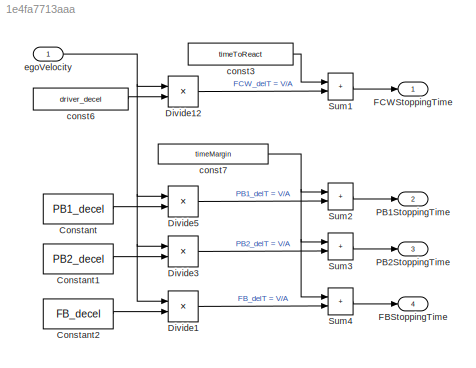
MODEL slx_1e4fa7713aaa
KIND model
CONFIG AbsTol = auto
CONFIG EnableMultiTasking = on
CONFIG FixedStep = auto
CONFIG MaxStep = auto
CONFIG MinStep = auto
CONFIG RelTol = 1e-3
CONFIG SampleTimeConstraint = Unconstrained
CONFIG SolverName = FixedStepDiscrete
CONFIG StartTime = 0.0
CONFIG StopTime = 10.0
BLOCK [Constant] Constant
  Value = PB1_decel
BLOCK [Constant] Constant1
  Value = PB2_decel
BLOCK [Constant] Constant2
  Value = FB_decel
BLOCK [Product] Divide1
  Inputs = */
BLOCK [Product] Divide12
  Inputs = */
BLOCK [Product] Divide3
  Inputs = */
BLOCK [Product] Divide5
  Inputs = */
BLOCK [Outport] FBStoppingTime
  OutDataTypeStr = StopTime_DType
  OutMax = StopTime_Max
  OutMin = StopTime_Min
  Port = 4
  PortDimensions = StopTime_Dimensions
  SampleTime = Ts
  SamplingMode = Sample based
  SignalType = real
  Unit = s
  VectorParamsAs1DForOutWhenUnconnected = off
BLOCK [Outport] FCWStoppingTime
  OutDataTypeStr = StopTime_DType
  OutMax = StopTime_Max
  OutMin = StopTime_Min
  PortDimensions = StopTime_Dimensions
  SampleTime = Ts
  SamplingMode = Sample based
  SignalType = real
  Unit = s
  VectorParamsAs1DForOutWhenUnconnected = off
BLOCK [Outport] PB1StoppingTime
  OutDataTypeStr = StopTime_DType
  OutMax = StopTime_Max
  OutMin = StopTime_Min
  Port = 2
  PortDimensions = StopTime_Dimensions
  SampleTime = Ts
  SamplingMode = Sample based
  SignalType = real
  Unit = s
  VectorParamsAs1DForOutWhenUnconnected = off
BLOCK [Outport] PB2StoppingTime
  OutDataTypeStr = StopTime_DType
  OutMax = StopTime_Max
  OutMin = StopTime_Min
  Port = 3
  PortDimensions = StopTime_Dimensions
  SampleTime = Ts
  SamplingMode = Sample based
  SignalType = real
  Unit = s
  VectorParamsAs1DForOutWhenUnconnected = off
BLOCK [Sum] Sum1
  IconShape = rectangular
BLOCK [Sum] Sum2
  IconShape = rectangular
BLOCK [Sum] Sum3
  IconShape = rectangular
BLOCK [Sum] Sum4
  IconShape = rectangular
BLOCK [Constant] const3
  SampleTime = -1
  Value = timeToReact
BLOCK [Constant] const6
  SampleTime = -1
  Value = driver_decel
BLOCK [Constant] const7
  SampleTime = -1
  Value = timeMargin
BLOCK [Inport] egoVelocity
  OutDataTypeStr = Velocity_DType
  OutMax = Velocity_Max
  OutMin = 0
  PortDimensions = Velocity_Dimensions
  SampleTime = Ts
  SamplingMode = Sample based
  SignalType = real
  Unit = m/s
LINE Constant1:1 -> Divide3:2
LINE Constant2:1 -> Divide1:2
LINE Constant:1 -> Divide5:2
LINE Divide12:1 -> Sum1:2
LINE Divide1:1 -> Sum4:2
LINE Divide3:1 -> Sum3:2
LINE Divide5:1 -> Sum2:2
LINE Sum1:1 -> FCWStoppingTime:1
LINE Sum2:1 -> PB1StoppingTime:1
LINE Sum3:1 -> PB2StoppingTime:1
LINE Sum4:1 -> FBStoppingTime:1
LINE const3:1 -> Sum1:1
LINE const6:1 -> Divide12:2
NET const7:1 -> Sum2:1, Sum3:1, Sum4:1
NET egoVelocity:1 -> Divide12:1, Divide1:1, Divide3:1, Divide5:1
note: NET lines group one-source signal fan-out (src -> all destinations, sorted); 1:1 wires keep LINE
